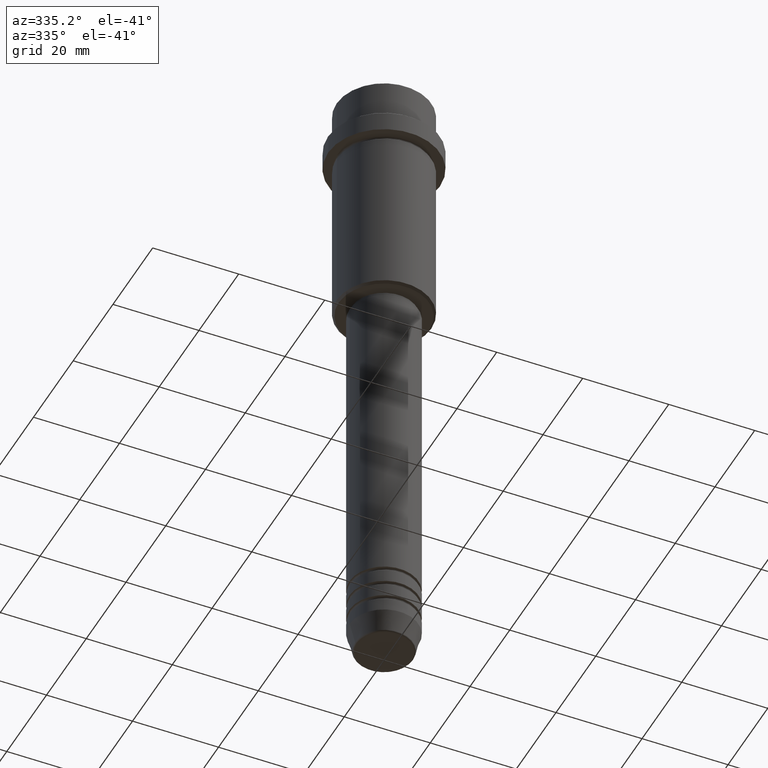
[diagram: clean part render]
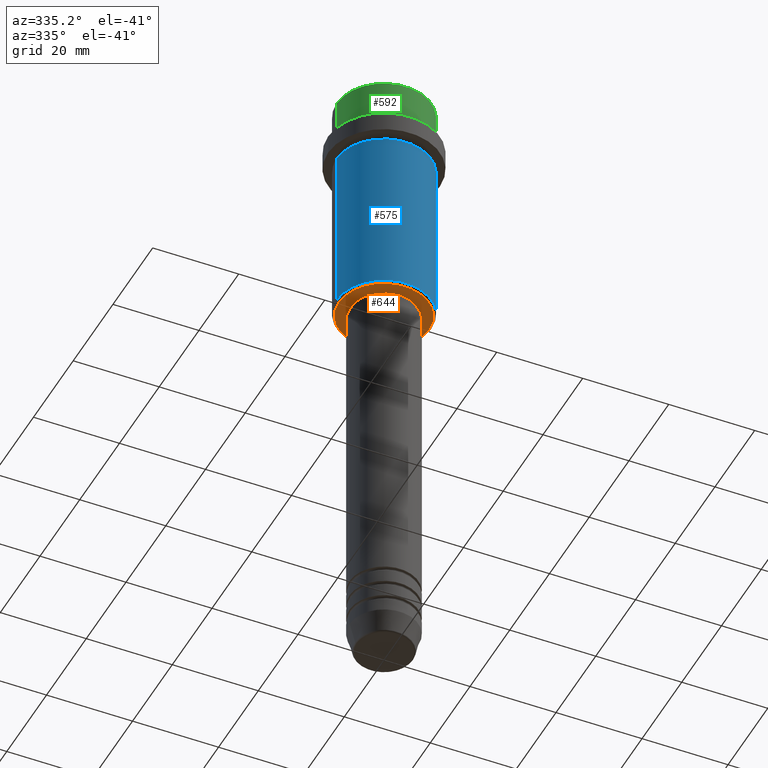
[diagram: same view with three faces highlighted in distinct colors, each labeled with its STEP entity id]
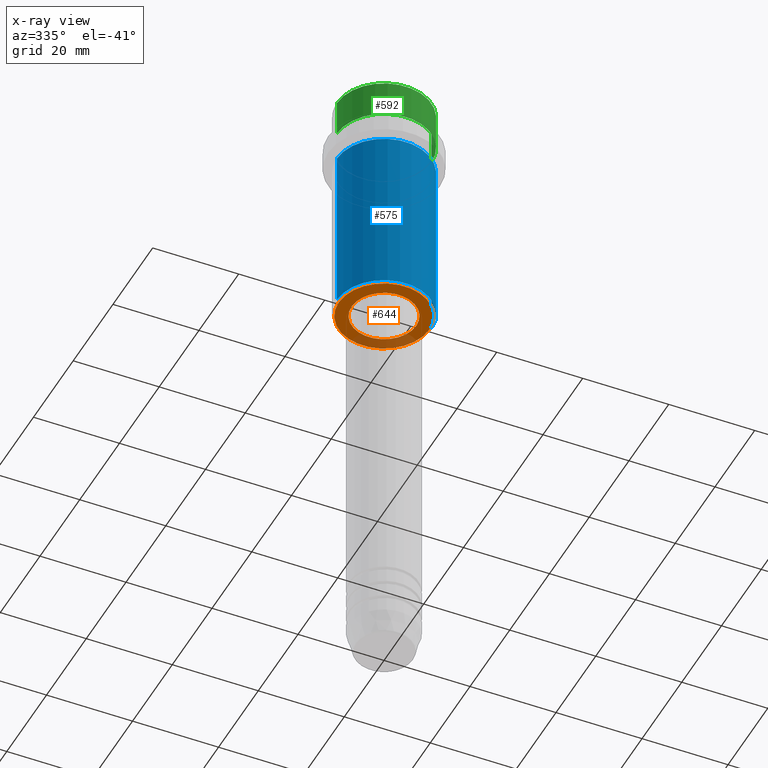
[diagram: x-ray of the same camera — body ghosted, the three highlighted faces saturated]
A machine part, auxiliary view with three faces highlighted in distinct colors.
The next image is the same camera in x-ray (body ghosted, the three faces saturated) — at least one of them is partly hidden behind the body in this view.
Their STEP definitions:

[orange] entity #644 — the highlighted planar face has unit normal (0, 0, -1).
#3 = DIRECTION ( 'NONE',  ( -0.000000000000000000, -0.000000000000000000, 1.000000000000000000 ) ) ;
#103 = CIRCLE ( 'NONE', #221, 7.499999999999963585 ) ;
#104 = AXIS2_PLACEMENT_3D ( 'NONE', #943, #1368, #1254 ) ;
#135 = CARTESIAN_POINT ( 'NONE',  ( -7.499999999999963585, 9.184850993605104557E-16, -56.00000000000000711 ) ) ;
#149 = AXIS2_PLACEMENT_3D ( 'NONE', #717, #708, #916 ) ;
#209 = VERTEX_POINT ( 'NONE', #892 ) ;
#221 = AXIS2_PLACEMENT_3D ( 'NONE', #589, #3, #1015 ) ;
#232 = VERTEX_POINT ( 'NONE', #1108 ) ;
#261 = FACE_OUTER_BOUND ( 'NONE', #1100, .T. ) ;
#374 = EDGE_CURVE ( 'NONE', #209, #1376, #1290, .T. ) ;
#416 = CARTESIAN_POINT ( 'NONE',  ( 0.000000000000000000, 0.000000000000000000, -56.00000000000000711 ) ) ;
#589 = CARTESIAN_POINT ( 'NONE',  ( 0.000000000000000000, 0.000000000000000000, -56.00000000000000711 ) ) ;
#608 = EDGE_LOOP ( 'NONE', ( #1239, #670 ) ) ;
#626 = CARTESIAN_POINT ( 'NONE',  ( 0.000000000000000000, 0.000000000000000000, -56.00000000000000711 ) ) ;
#641 = EDGE_CURVE ( 'NONE', #891, #232, #103, .T. ) ;
#644 = ADVANCED_FACE ( 'NONE', ( #261, #1372 ), #1154, .T. ) ;
#647 = DIRECTION ( 'NONE',  ( 0.000000000000000000, 0.000000000000000000, -1.000000000000000000 ) ) ;
#670 = ORIENTED_EDGE ( 'NONE', *, *, #641, .T. ) ;
#708 = DIRECTION ( 'NONE',  ( 0.000000000000000000, 0.000000000000000000, -1.000000000000000000 ) ) ;
#716 = AXIS2_PLACEMENT_3D ( 'NONE', #626, #647, #1175 ) ;
#717 = CARTESIAN_POINT ( 'NONE',  ( 0.000000000000000000, 11.00000000000000355, -56.00000000000000711 ) ) ;
#856 = DIRECTION ( 'NONE',  ( -0.000000000000000000, -0.000000000000000000, 1.000000000000000000 ) ) ;
#877 = CIRCLE ( 'NONE', #1070, 7.499999999999963585 ) ;
#891 = VERTEX_POINT ( 'NONE', #135 ) ;
#892 = CARTESIAN_POINT ( 'NONE',  ( -10.50000000000000888, 1.316495309083404420E-15, -56.00000000000000711 ) ) ;
#916 = DIRECTION ( 'NONE',  ( -1.000000000000000000, 0.000000000000000000, -0.000000000000000000 ) ) ;
#943 = CARTESIAN_POINT ( 'NONE',  ( 0.000000000000000000, 0.000000000000000000, -56.00000000000000711 ) ) ;
#1015 = DIRECTION ( 'NONE',  ( 1.000000000000000000, 0.000000000000000000, 0.000000000000000000 ) ) ;
#1070 = AXIS2_PLACEMENT_3D ( 'NONE', #416, #856, #1277 ) ;
#1100 = EDGE_LOOP ( 'NONE', ( #1180, #1366 ) ) ;
#1108 = CARTESIAN_POINT ( 'NONE',  ( 7.499999999999963585, 0.000000000000000000, -56.00000000000000711 ) ) ;
#1154 = PLANE ( 'NONE',  #149 ) ;
#1175 = DIRECTION ( 'NONE',  ( -1.000000000000000000, 0.000000000000000000, 0.000000000000000000 ) ) ;
#1180 = ORIENTED_EDGE ( 'NONE', *, *, #1201, .T. ) ;
#1201 = EDGE_CURVE ( 'NONE', #1376, #209, #1288, .T. ) ;
#1239 = ORIENTED_EDGE ( 'NONE', *, *, #1386, .T. ) ;
#1254 = DIRECTION ( 'NONE',  ( -1.000000000000000000, 0.000000000000000000, 0.000000000000000000 ) ) ;
#1277 = DIRECTION ( 'NONE',  ( 1.000000000000000000, 0.000000000000000000, 0.000000000000000000 ) ) ;
#1282 = CARTESIAN_POINT ( 'NONE',  ( 10.50000000000000888, 0.000000000000000000, -56.00000000000000711 ) ) ;
#1288 = CIRCLE ( 'NONE', #104, 10.50000000000000888 ) ;
#1290 = CIRCLE ( 'NONE', #716, 10.50000000000000888 ) ;
#1366 = ORIENTED_EDGE ( 'NONE', *, *, #374, .T. ) ;
#1368 = DIRECTION ( 'NONE',  ( 0.000000000000000000, 0.000000000000000000, -1.000000000000000000 ) ) ;
#1372 = FACE_BOUND ( 'NONE', #608, .T. ) ;
#1376 = VERTEX_POINT ( 'NONE', #1282 ) ;
#1386 = EDGE_CURVE ( 'NONE', #232, #891, #877, .T. ) ;

[blue] entity #575 — the highlighted cylindrical surface (partial cylindrical patch) has radius 11 mm, axis along (-0, -0, 1).
#9 = CARTESIAN_POINT ( 'NONE',  ( -10.99999999999997158, 1.347111479062085841E-15, -16.00000000000000355 ) ) ;
#14 = EDGE_CURVE ( 'NONE', #865, #380, #921, .T. ) ;
#62 = DIRECTION ( 'NONE',  ( 1.000000000000000000, 0.000000000000000000, 0.000000000000000000 ) ) ;
#77 = ORIENTED_EDGE ( 'NONE', *, *, #439, .T. ) ;
#83 = FACE_OUTER_BOUND ( 'NONE', #441, .T. ) ;
#86 = ORIENTED_EDGE ( 'NONE', *, *, #741, .T. ) ;
#113 = VERTEX_POINT ( 'NONE', #739 ) ;
#153 = AXIS2_PLACEMENT_3D ( 'NONE', #399, #835, #62 ) ;
#176 = VECTOR ( 'NONE', #406, 1000.000000000000000 ) ;
#290 = AXIS2_PLACEMENT_3D ( 'NONE', #680, #1214, #772 ) ;
#315 = ORIENTED_EDGE ( 'NONE', *, *, #1225, .F. ) ;
#380 = VERTEX_POINT ( 'NONE', #838 ) ;
#399 = CARTESIAN_POINT ( 'NONE',  ( 0.000000000000000000, 0.000000000000000000, 0.000000000000000000 ) ) ;
#406 = DIRECTION ( 'NONE',  ( -0.000000000000000000, -0.000000000000000000, 1.000000000000000000 ) ) ;
#439 = EDGE_CURVE ( 'NONE', #500, #113, #946, .T. ) ;
#441 = EDGE_LOOP ( 'NONE', ( #315, #77, #86, #1012 ) ) ;
#500 = VERTEX_POINT ( 'NONE', #763 ) ;
#523 = VECTOR ( 'NONE', #1040, 1000.000000000000000 ) ;
#540 = CYLINDRICAL_SURFACE ( 'NONE', #153, 10.99999999999998757 ) ;
#575 = ADVANCED_FACE ( 'NONE', ( #83 ), #540, .T. ) ;
#680 = CARTESIAN_POINT ( 'NONE',  ( 0.000000000000000000, 0.000000000000000000, -55.50000000000002132 ) ) ;
#730 = LINE ( 'NONE', #1257, #523 ) ;
#739 = CARTESIAN_POINT ( 'NONE',  ( 10.99999999999998757, 0.000000000000000000, -55.50000000000002132 ) ) ;
#741 = EDGE_CURVE ( 'NONE', #113, #380, #730, .T. ) ;
#763 = CARTESIAN_POINT ( 'NONE',  ( -10.99999999999998757, 1.347111479062086827E-15, -55.50000000000002132 ) ) ;
#772 = DIRECTION ( 'NONE',  ( -1.000000000000000000, 0.000000000000000000, 0.000000000000000000 ) ) ;
#784 = CARTESIAN_POINT ( 'NONE',  ( 0.000000000000000000, 0.000000000000000000, -16.00000000000000355 ) ) ;
#789 = DIRECTION ( 'NONE',  ( 1.000000000000000000, 0.000000000000000000, 0.000000000000000000 ) ) ;
#835 = DIRECTION ( 'NONE',  ( -0.000000000000000000, -0.000000000000000000, 1.000000000000000000 ) ) ;
#838 = CARTESIAN_POINT ( 'NONE',  ( 10.99999999999997158, 0.000000000000000000, -16.00000000000000355 ) ) ;
#855 = CARTESIAN_POINT ( 'NONE',  ( -10.99999999999998757, 1.347111479062086827E-15, 0.000000000000000000 ) ) ;
#865 = VERTEX_POINT ( 'NONE', #9 ) ;
#921 = CIRCLE ( 'NONE', #1207, 10.99999999999997158 ) ;
#946 = CIRCLE ( 'NONE', #290, 10.99999999999998757 ) ;
#994 = DIRECTION ( 'NONE',  ( -0.000000000000000000, -0.000000000000000000, 1.000000000000000000 ) ) ;
#1012 = ORIENTED_EDGE ( 'NONE', *, *, #14, .F. ) ;
#1040 = DIRECTION ( 'NONE',  ( -0.000000000000000000, -0.000000000000000000, 1.000000000000000000 ) ) ;
#1052 = LINE ( 'NONE', #855, #176 ) ;
#1207 = AXIS2_PLACEMENT_3D ( 'NONE', #784, #994, #789 ) ;
#1214 = DIRECTION ( 'NONE',  ( -0.000000000000000000, -0.000000000000000000, 1.000000000000000000 ) ) ;
#1225 = EDGE_CURVE ( 'NONE', #500, #865, #1052, .T. ) ;
#1257 = CARTESIAN_POINT ( 'NONE',  ( 10.99999999999998757, 0.000000000000000000, 0.000000000000000000 ) ) ;

[green] entity #592 — the highlighted cylindrical surface (partial cylindrical patch) has radius 11 mm, axis along (-0, -0, 1).
#11 = CARTESIAN_POINT ( 'NONE',  ( 0.000000000000000000, 0.000000000000000000, -9.000000000000000000 ) ) ;
#71 = CARTESIAN_POINT ( 'NONE',  ( 0.000000000000000000, 0.000000000000000000, -0.4999999999999882871 ) ) ;
#90 = DIRECTION ( 'NONE',  ( 1.000000000000000000, 0.000000000000000000, 0.000000000000000000 ) ) ;
#93 = EDGE_CURVE ( 'NONE', #1379, #705, #1292, .T. ) ;
#98 = CARTESIAN_POINT ( 'NONE',  ( 10.99999999999997158, 0.000000000000000000, -9.000000000000000000 ) ) ;
#109 = EDGE_CURVE ( 'NONE', #705, #733, #312, .T. ) ;
#127 = ORIENTED_EDGE ( 'NONE', *, *, #638, .T. ) ;
#139 = DIRECTION ( 'NONE',  ( 1.000000000000000000, 0.000000000000000000, 0.000000000000000000 ) ) ;
#175 = CARTESIAN_POINT ( 'NONE',  ( 10.99999999999998757, 0.000000000000000000, -0.4999999999999882871 ) ) ;
#192 = ORIENTED_EDGE ( 'NONE', *, *, #484, .F. ) ;
#216 = EDGE_LOOP ( 'NONE', ( #192, #127, #1269, #742 ) ) ;
#308 = DIRECTION ( 'NONE',  ( -0.000000000000000000, -0.000000000000000000, 1.000000000000000000 ) ) ;
#312 = CIRCLE ( 'NONE', #1389, 10.99999999999998757 ) ;
#363 = VERTEX_POINT ( 'NONE', #1353 ) ;
#377 = CARTESIAN_POINT ( 'NONE',  ( 0.000000000000000000, 0.000000000000000000, 0.000000000000000000 ) ) ;
#427 = LINE ( 'NONE', #987, #740 ) ;
#452 = DIRECTION ( 'NONE',  ( -0.000000000000000000, -0.000000000000000000, 1.000000000000000000 ) ) ;
#484 = EDGE_CURVE ( 'NONE', #363, #733, #427, .T. ) ;
#524 = CARTESIAN_POINT ( 'NONE',  ( 10.99999999999998757, 0.000000000000000000, 0.000000000000000000 ) ) ;
#592 = ADVANCED_FACE ( 'NONE', ( #1321 ), #839, .T. ) ;
#620 = CARTESIAN_POINT ( 'NONE',  ( -10.99999999999998757, 1.347111479062086827E-15, -0.4999999999999882871 ) ) ;
#638 = EDGE_CURVE ( 'NONE', #363, #1379, #1016, .T. ) ;
#639 = DIRECTION ( 'NONE',  ( -0.000000000000000000, -0.000000000000000000, 1.000000000000000000 ) ) ;
#678 = AXIS2_PLACEMENT_3D ( 'NONE', #11, #452, #139 ) ;
#683 = DIRECTION ( 'NONE',  ( -0.000000000000000000, -0.000000000000000000, 1.000000000000000000 ) ) ;
#705 = VERTEX_POINT ( 'NONE', #175 ) ;
#733 = VERTEX_POINT ( 'NONE', #620 ) ;
#740 = VECTOR ( 'NONE', #683, 1000.000000000000000 ) ;
#742 = ORIENTED_EDGE ( 'NONE', *, *, #109, .T. ) ;
#839 = CYLINDRICAL_SURFACE ( 'NONE', #1072, 10.99999999999998757 ) ;
#848 = VECTOR ( 'NONE', #308, 1000.000000000000000 ) ;
#987 = CARTESIAN_POINT ( 'NONE',  ( -10.99999999999998757, 1.347111479062086827E-15, 0.000000000000000000 ) ) ;
#1016 = CIRCLE ( 'NONE', #678, 10.99999999999997158 ) ;
#1072 = AXIS2_PLACEMENT_3D ( 'NONE', #377, #639, #1145 ) ;
#1145 = DIRECTION ( 'NONE',  ( 1.000000000000000000, 0.000000000000000000, 0.000000000000000000 ) ) ;
#1263 = DIRECTION ( 'NONE',  ( 0.000000000000000000, 0.000000000000000000, -1.000000000000000000 ) ) ;
#1269 = ORIENTED_EDGE ( 'NONE', *, *, #93, .T. ) ;
#1292 = LINE ( 'NONE', #524, #848 ) ;
#1321 = FACE_OUTER_BOUND ( 'NONE', #216, .T. ) ;
#1353 = CARTESIAN_POINT ( 'NONE',  ( -10.99999999999997158, 1.347111479062085841E-15, -9.000000000000000000 ) ) ;
#1379 = VERTEX_POINT ( 'NONE', #98 ) ;
#1389 = AXIS2_PLACEMENT_3D ( 'NONE', #71, #1263, #90 ) ;